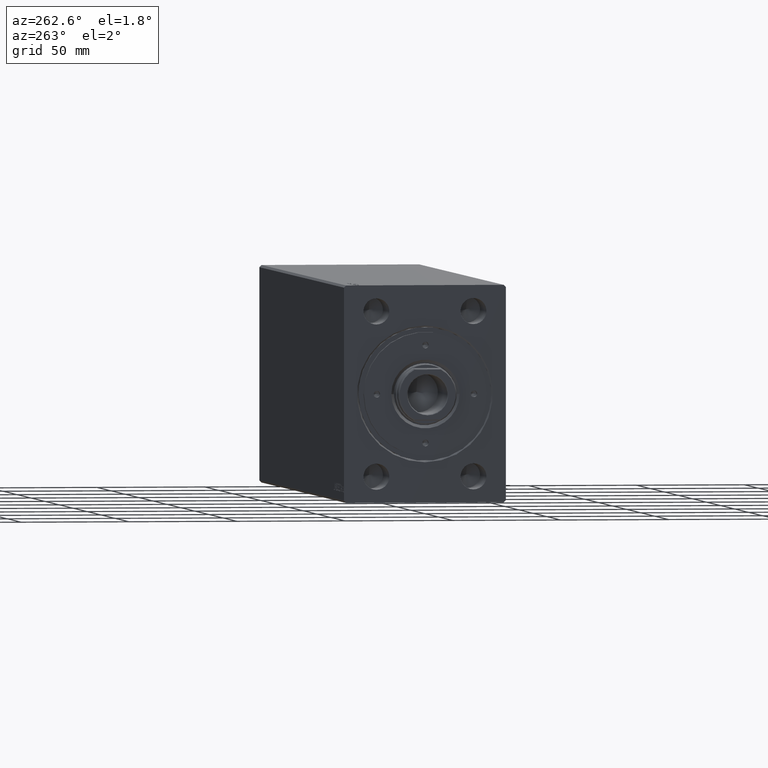
[diagram: clean part render]
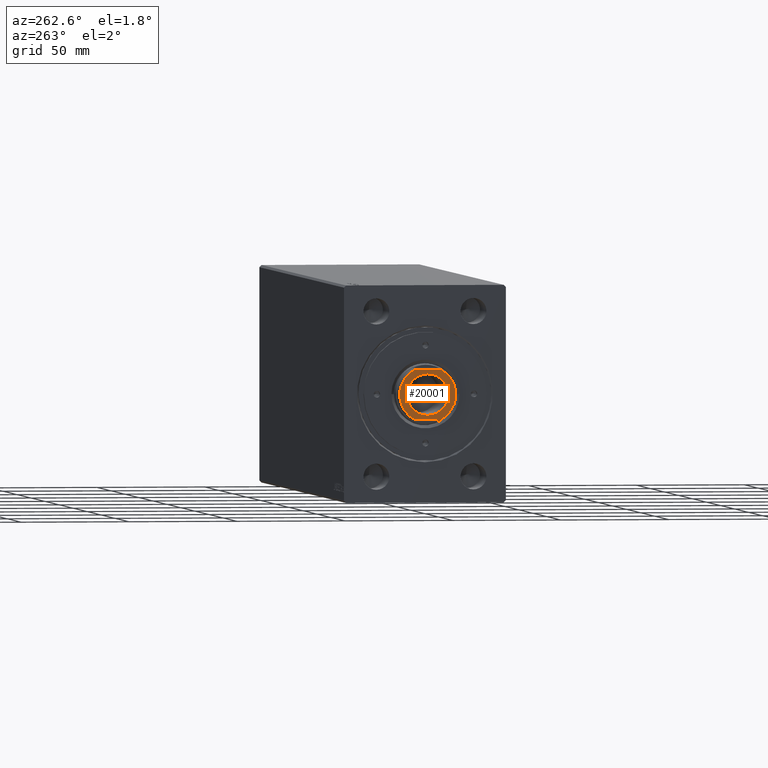
[diagram: same view with one face highlighted and labeled with its STEP entity id]
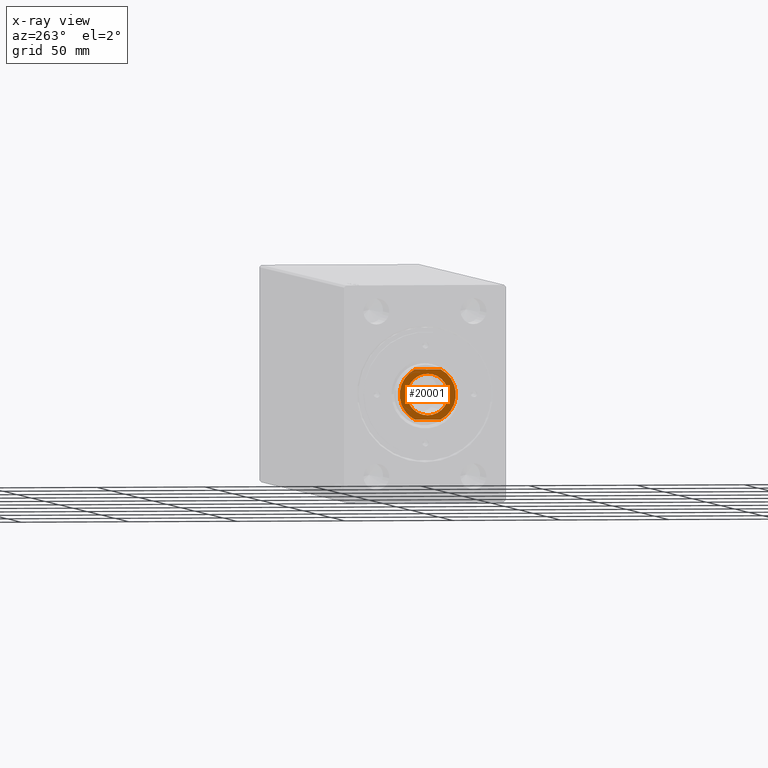
[diagram: x-ray of the same camera — body ghosted, the highlighted face saturated]
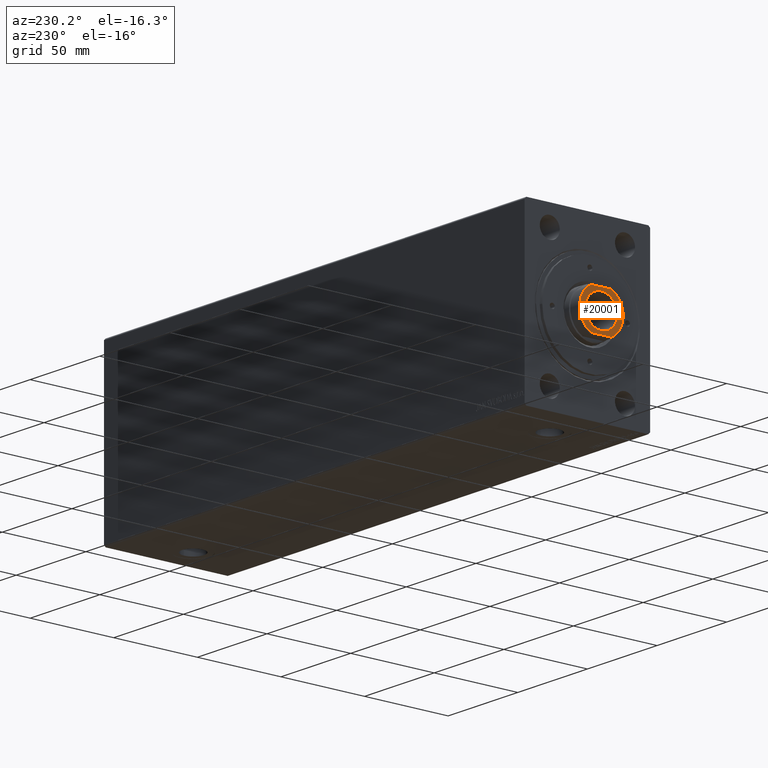
[diagram: same view with one face highlighted and labeled with its STEP entity id]
A machine part, auxiliary view. The second image highlights one B-rep face of the part: STEP entity #20001.
The next image is the same camera in x-ray: the body ghosted, the highlighted face saturated — about 0% of this face is hidden behind the body in this view.
A second angle (auxiliary view) of the same face is appended — the face is thin or edge-on in the first view.
In plain terms, the highlighted planar face has unit normal (-1, 0, 0).
Its self-contained STEP definition (entity closure, byte-faithful):
#78 = VERTEX_POINT ( 'NONE', #4227 ) ;
#1709 = AXIS2_PLACEMENT_3D ( 'NONE', #41658, #38307, #7771 ) ;
#2561 = VERTEX_POINT ( 'NONE', #38585 ) ;
#2828 = EDGE_LOOP ( 'NONE', ( #14517, #19418 ) ) ;
#4227 = CARTESIAN_POINT ( 'NONE',  ( -9.550000000000002487, 1.169537693185722755E-15, 294.5000000000000000 ) ) ;
#4798 = CARTESIAN_POINT ( 'NONE',  ( 11.50000000000002842, 6.184658438426455795, 294.5000000000000000 ) ) ;
#5230 = DIRECTION ( 'NONE',  ( 0.000000000000000000, 1.000000000000000000, 0.000000000000000000 ) ) ;
#5506 = DIRECTION ( 'NONE',  ( -0.000000000000000000, -0.000000000000000000, -1.000000000000000000 ) ) ;
#5515 = VERTEX_POINT ( 'NONE', #9549 ) ;
#5701 = AXIS2_PLACEMENT_3D ( 'NONE', #39813, #5506, #16401 ) ;
#7771 = DIRECTION ( 'NONE',  ( 1.000000000000000000, 0.000000000000000000, 0.000000000000000000 ) ) ;
#8311 = VERTEX_POINT ( 'NONE', #23730 ) ;
#8362 = FACE_BOUND ( 'NONE', #2828, .T. ) ;
#9549 = CARTESIAN_POINT ( 'NONE',  ( 11.50000000000002842, -6.062177826491041976, 294.5000000000000000 ) ) ;
#10597 = EDGE_CURVE ( 'NONE', #17160, #78, #29412, .T. ) ;
#11146 = CARTESIAN_POINT ( 'NONE',  ( 11.50000000000002842, 6.062177826491041976, 294.5000000000000000 ) ) ;
#12545 = DIRECTION ( 'NONE',  ( 1.000000000000000000, 0.000000000000000000, 0.000000000000000000 ) ) ;
#14041 = DIRECTION ( 'NONE',  ( 0.000000000000000000, 0.000000000000000000, 1.000000000000000000 ) ) ;
#14517 = ORIENTED_EDGE ( 'NONE', *, *, #10597, .T. ) ;
#15870 = AXIS2_PLACEMENT_3D ( 'NONE', #43079, #43295, #12545 ) ;
#16401 = DIRECTION ( 'NONE',  ( 1.000000000000000000, 0.000000000000000000, 0.000000000000000000 ) ) ;
#16642 = DIRECTION ( 'NONE',  ( 0.000000000000000000, -1.000000000000000000, 0.000000000000000000 ) ) ;
#16714 = VERTEX_POINT ( 'NONE', #11146 ) ;
#16972 = AXIS2_PLACEMENT_3D ( 'NONE', #19839, #14041, #27640 ) ;
#17087 = LINE ( 'NONE', #22896, #37288 ) ;
#17160 = VERTEX_POINT ( 'NONE', #33948 ) ;
#19418 = ORIENTED_EDGE ( 'NONE', *, *, #39632, .T. ) ;
#19839 = CARTESIAN_POINT ( 'NONE',  ( 0.000000000000000000, 0.000000000000000000, 294.5000000000000000 ) ) ;
#20001 = ADVANCED_FACE ( 'NONE', ( #25298, #8362 ), #21074, .T. ) ;
#20543 = CIRCLE ( 'NONE', #16972, 13.00000000000001066 ) ;
#21074 = PLANE ( 'NONE',  #41744 ) ;
#21943 = DIRECTION ( 'NONE',  ( 1.000000000000000000, 0.000000000000000000, -0.000000000000000000 ) ) ;
#22896 = CARTESIAN_POINT ( 'NONE',  ( -11.50000000000002842, -6.184658438426455795, 294.5000000000000000 ) ) ;
#23257 = ORIENTED_EDGE ( 'NONE', *, *, #28206, .T. ) ;
#23730 = CARTESIAN_POINT ( 'NONE',  ( -11.50000000000002842, -6.062177826491041976, 294.5000000000000000 ) ) ;
#24244 = EDGE_CURVE ( 'NONE', #8311, #5515, #20543, .T. ) ;
#24633 = CARTESIAN_POINT ( 'NONE',  ( 0.000000000000000000, 0.000000000000000000, 294.5000000000000000 ) ) ;
#25298 = FACE_OUTER_BOUND ( 'NONE', #36905, .T. ) ;
#26284 = ORIENTED_EDGE ( 'NONE', *, *, #27137, .T. ) ;
#26321 = ORIENTED_EDGE ( 'NONE', *, *, #26995, .T. ) ;
#26995 = EDGE_CURVE ( 'NONE', #16714, #2561, #40821, .T. ) ;
#27137 = EDGE_CURVE ( 'NONE', #2561, #8311, #17087, .T. ) ;
#27640 = DIRECTION ( 'NONE',  ( 1.000000000000000000, 0.000000000000000000, 0.000000000000000000 ) ) ;
#28206 = EDGE_CURVE ( 'NONE', #5515, #16714, #28640, .T. ) ;
#28640 = LINE ( 'NONE', #4798, #42286 ) ;
#29412 = CIRCLE ( 'NONE', #15870, 9.550000000000002487 ) ;
#33948 = CARTESIAN_POINT ( 'NONE',  ( 9.550000000000002487, 0.000000000000000000, 294.5000000000000000 ) ) ;
#35468 = ORIENTED_EDGE ( 'NONE', *, *, #24244, .T. ) ;
#36905 = EDGE_LOOP ( 'NONE', ( #26284, #35468, #23257, #26321 ) ) ;
#37288 = VECTOR ( 'NONE', #16642, 1000.000000000000000 ) ;
#38238 = DIRECTION ( 'NONE',  ( 0.000000000000000000, 0.000000000000000000, 1.000000000000000000 ) ) ;
#38307 = DIRECTION ( 'NONE',  ( 0.000000000000000000, 0.000000000000000000, 1.000000000000000000 ) ) ;
#38585 = CARTESIAN_POINT ( 'NONE',  ( -11.50000000000002842, 6.062177826491041088, 294.5000000000000000 ) ) ;
#39632 = EDGE_CURVE ( 'NONE', #78, #17160, #42004, .T. ) ;
#39813 = CARTESIAN_POINT ( 'NONE',  ( 0.000000000000000000, 0.000000000000000000, 294.5000000000000000 ) ) ;
#40821 = CIRCLE ( 'NONE', #1709, 13.00000000000001066 ) ;
#41658 = CARTESIAN_POINT ( 'NONE',  ( 0.000000000000000000, 0.000000000000000000, 294.5000000000000000 ) ) ;
#41744 = AXIS2_PLACEMENT_3D ( 'NONE', #24633, #38238, #21943 ) ;
#42004 = CIRCLE ( 'NONE', #5701, 9.550000000000002487 ) ;
#42286 = VECTOR ( 'NONE', #5230, 1000.000000000000000 ) ;
#43079 = CARTESIAN_POINT ( 'NONE',  ( 0.000000000000000000, 0.000000000000000000, 294.5000000000000000 ) ) ;
#43295 = DIRECTION ( 'NONE',  ( -0.000000000000000000, -0.000000000000000000, -1.000000000000000000 ) ) ;